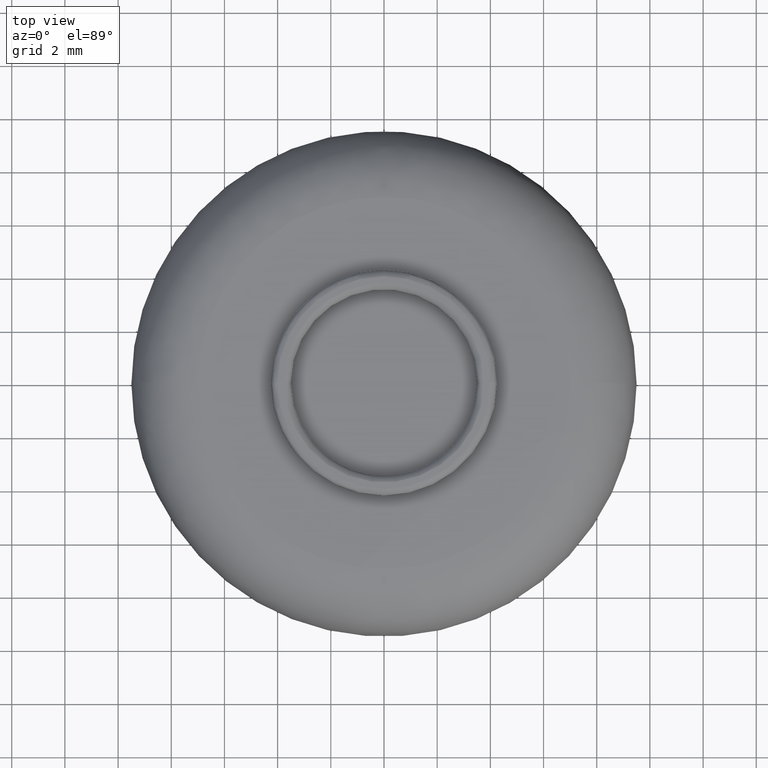
[diagram: clean part render]
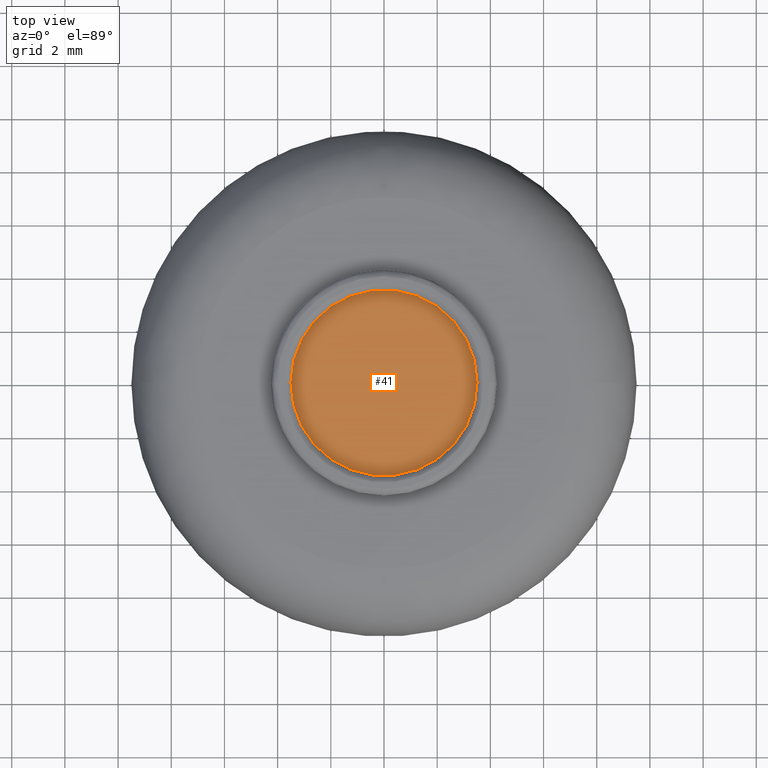
[diagram: same view with one face highlighted and labeled with its STEP entity id]
A machine part, top view. The second image highlights one B-rep face of the part: STEP entity #41.
In plain terms, the highlighted planar face has unit normal (0, 0, 1).
Its self-contained STEP definition (entity closure, byte-faithful):
#41=ADVANCED_FACE('',(#75),#74,.T.);
#74=PLANE('',#307);
#75=FACE_OUTER_BOUND('',#308,.T.);
#304=CARTESIAN_POINT('',(-4.55000000000E+000,-7.27461339179E+000,5.00000000000E-001));
#305=DIRECTION('',(0.00000000000E+000,0.00000000000E+000,1.00000000000E+000));
#306=DIRECTION('',(1.00000000000E+000,0.00000000000E+000,-0.00000000000E+000));
#307=AXIS2_PLACEMENT_3D('',#304,#305,#306);
#308=EDGE_LOOP('',(#590,#591));
#590=ORIENTED_EDGE('',*,*,#678,.F.);
#591=ORIENTED_EDGE('',*,*,#679,.F.);
#678=EDGE_CURVE('',#746,#747,#748,.T.);
#679=EDGE_CURVE('',#747,#746,#754,.T.);
#746=VERTEX_POINT('',#1030);
#747=VERTEX_POINT('',#1031);
#748=CIRCLE('',#1035,3.50000000000E+000);
#754=CIRCLE('',#1039,3.50000000000E+000);
#1030=CARTESIAN_POINT('',(3.50000000000E+000,0.00000000000E+000,5.00000000000E-001));
#1031=CARTESIAN_POINT('',(-3.50000000000E+000,-5.76641960455E-016,5.00000000000E-001));
#1032=CARTESIAN_POINT('',(0.00000000000E+000,0.00000000000E+000,5.00000000000E-001));
#1033=DIRECTION('',(0.00000000000E+000,0.00000000000E+000,-1.00000000000E+000));
#1034=DIRECTION('',(-1.00000000000E+000,-4.22942104620E-017,-0.00000000000E+000));
#1035=AXIS2_PLACEMENT_3D('',#1032,#1033,#1034);
#1036=CARTESIAN_POINT('',(0.00000000000E+000,0.00000000000E+000,5.00000000000E-001));
#1037=DIRECTION('',(0.00000000000E+000,0.00000000000E+000,-1.00000000000E+000));
#1038=DIRECTION('',(-1.00000000000E+000,-4.22942104620E-017,-0.00000000000E+000));
#1039=AXIS2_PLACEMENT_3D('',#1036,#1037,#1038);